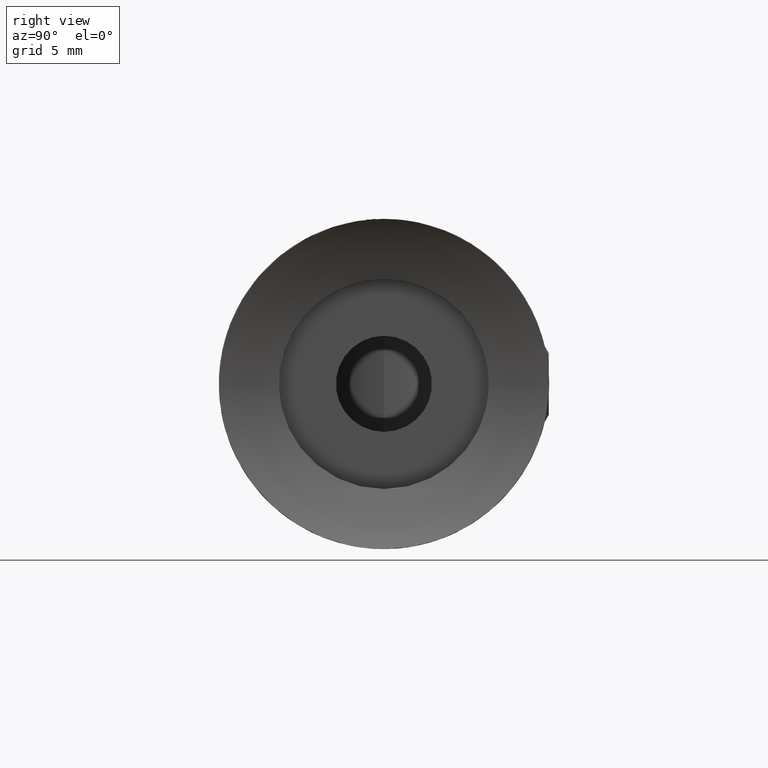
[diagram: clean part render]
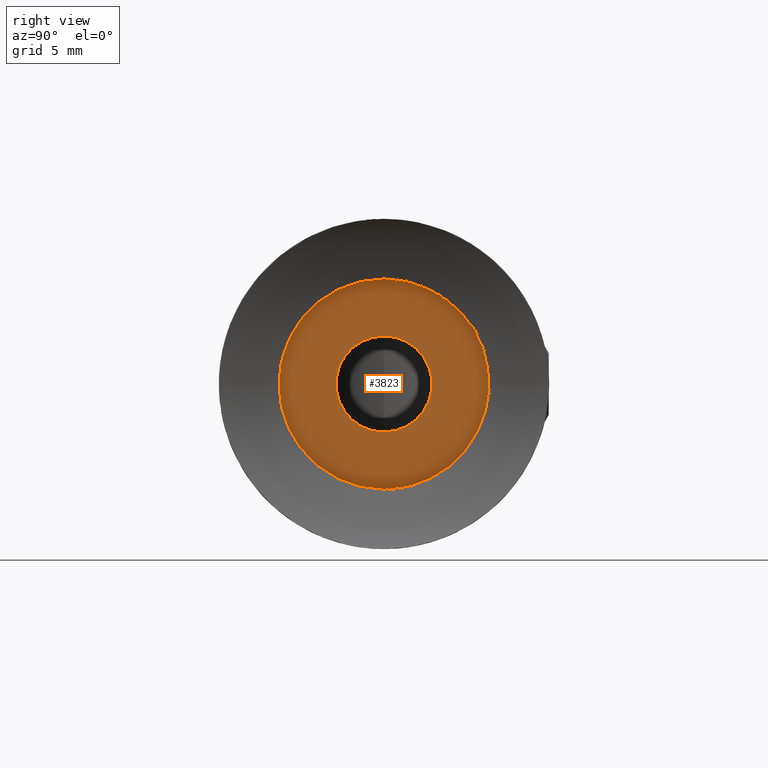
[diagram: same view with one face highlighted and labeled with its STEP entity id]
A machine part, right view. The second image highlights one B-rep face of the part: STEP entity #3823.
In plain terms, the highlighted planar face has unit normal (1, 0, 0).
Its self-contained STEP definition (entity closure, byte-faithful):
#28 = ORIENTED_EDGE ( 'NONE', *, *, #1487, .F. ) ;
#94 = CARTESIAN_POINT ( 'NONE',  ( -8.288489208633095000, 0.0000000000000000000, 0.0000000000000000000 ) ) ;
#112 = EDGE_CURVE ( 'NONE', #1903, #759, #1354, .T. ) ;
#118 = DIRECTION ( 'NONE',  ( 0.0000000000000000000, 0.0000000000000000000, -1.000000000000000000 ) ) ;
#379 = DIRECTION ( 'NONE',  ( 1.000000000000000000, -0.0000000000000000000, -0.0000000000000000000 ) ) ;
#442 = CARTESIAN_POINT ( 'NONE',  ( -8.288489208633095000, 0.0000000000000000000, 0.0000000000000000000 ) ) ;
#519 = DIRECTION ( 'NONE',  ( 1.000000000000000000, -0.0000000000000000000, -0.0000000000000000000 ) ) ;
#632 = EDGE_CURVE ( 'NONE', #759, #1903, #5008, .T. ) ;
#676 = AXIS2_PLACEMENT_3D ( 'NONE', #442, #5479, #5110 ) ;
#759 = VERTEX_POINT ( 'NONE', #2662 ) ;
#913 = DIRECTION ( 'NONE',  ( 1.000000000000000000, 0.0000000000000000000, -0.0000000000000000000 ) ) ;
#963 = AXIS2_PLACEMENT_3D ( 'NONE', #1957, #1115, #3275 ) ;
#1072 = AXIS2_PLACEMENT_3D ( 'NONE', #94, #519, #118 ) ;
#1097 = EDGE_CURVE ( 'NONE', #2171, #4626, #2612, .T. ) ;
#1115 = DIRECTION ( 'NONE',  ( 1.000000000000000000, -0.0000000000000000000, -0.0000000000000000000 ) ) ;
#1354 = CIRCLE ( 'NONE', #2955, 6.999999999999999100 ) ;
#1487 = EDGE_CURVE ( 'NONE', #4626, #2171, #2351, .T. ) ;
#1689 = AXIS2_PLACEMENT_3D ( 'NONE', #2957, #913, #5132 ) ;
#1738 = FACE_OUTER_BOUND ( 'NONE', #4177, .T. ) ;
#1903 = VERTEX_POINT ( 'NONE', #3772 ) ;
#1957 = CARTESIAN_POINT ( 'NONE',  ( -8.288489208633095000, 0.0000000000000000000, 0.0000000000000000000 ) ) ;
#1963 = ORIENTED_EDGE ( 'NONE', *, *, #632, .T. ) ;
#2171 = VERTEX_POINT ( 'NONE', #4741 ) ;
#2351 = CIRCLE ( 'NONE', #1072, 3.199999999999998000 ) ;
#2484 = CARTESIAN_POINT ( 'NONE',  ( -8.288489208633095000, 0.0000000000000000000, 0.0000000000000000000 ) ) ;
#2612 = CIRCLE ( 'NONE', #963, 3.199999999999998000 ) ;
#2635 = ORIENTED_EDGE ( 'NONE', *, *, #1097, .F. ) ;
#2662 = CARTESIAN_POINT ( 'NONE',  ( -8.288489208633095000, 8.572527594031472200E-016, 6.999999999999999100 ) ) ;
#2735 = FACE_BOUND ( 'NONE', #5399, .T. ) ;
#2955 = AXIS2_PLACEMENT_3D ( 'NONE', #2484, #379, #3878 ) ;
#2957 = CARTESIAN_POINT ( 'NONE',  ( -8.288489208633095000, 6.999999999999999100, 0.0000000000000000000 ) ) ;
#3275 = DIRECTION ( 'NONE',  ( 0.0000000000000000000, 0.0000000000000000000, -1.000000000000000000 ) ) ;
#3772 = CARTESIAN_POINT ( 'NONE',  ( -8.288489208633095000, 0.0000000000000000000, -6.999999999999999100 ) ) ;
#3823 = ADVANCED_FACE ( 'NONE', ( #1738, #2735 ), #4309, .T. ) ;
#3878 = DIRECTION ( 'NONE',  ( 0.0000000000000000000, 0.0000000000000000000, -1.000000000000000000 ) ) ;
#4093 = CARTESIAN_POINT ( 'NONE',  ( -8.288489208633095000, 3.918869757271527500E-016, 3.199999999999998000 ) ) ;
#4177 = EDGE_LOOP ( 'NONE', ( #5472, #1963 ) ) ;
#4309 = PLANE ( 'NONE',  #1689 ) ;
#4626 = VERTEX_POINT ( 'NONE', #4093 ) ;
#4741 = CARTESIAN_POINT ( 'NONE',  ( -8.288489208633095000, 0.0000000000000000000, -3.199999999999998000 ) ) ;
#5008 = CIRCLE ( 'NONE', #676, 6.999999999999999100 ) ;
#5110 = DIRECTION ( 'NONE',  ( 0.0000000000000000000, 0.0000000000000000000, -1.000000000000000000 ) ) ;
#5132 = DIRECTION ( 'NONE',  ( -0.0000000000000000000, 0.0000000000000000000, -1.000000000000000000 ) ) ;
#5399 = EDGE_LOOP ( 'NONE', ( #2635, #28 ) ) ;
#5472 = ORIENTED_EDGE ( 'NONE', *, *, #112, .T. ) ;
#5479 = DIRECTION ( 'NONE',  ( 1.000000000000000000, -0.0000000000000000000, -0.0000000000000000000 ) ) ;